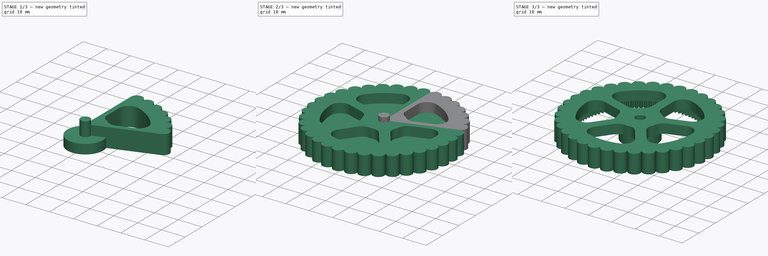
[diagram: build sequence overview — one tinted view per stage of 3, left to right]
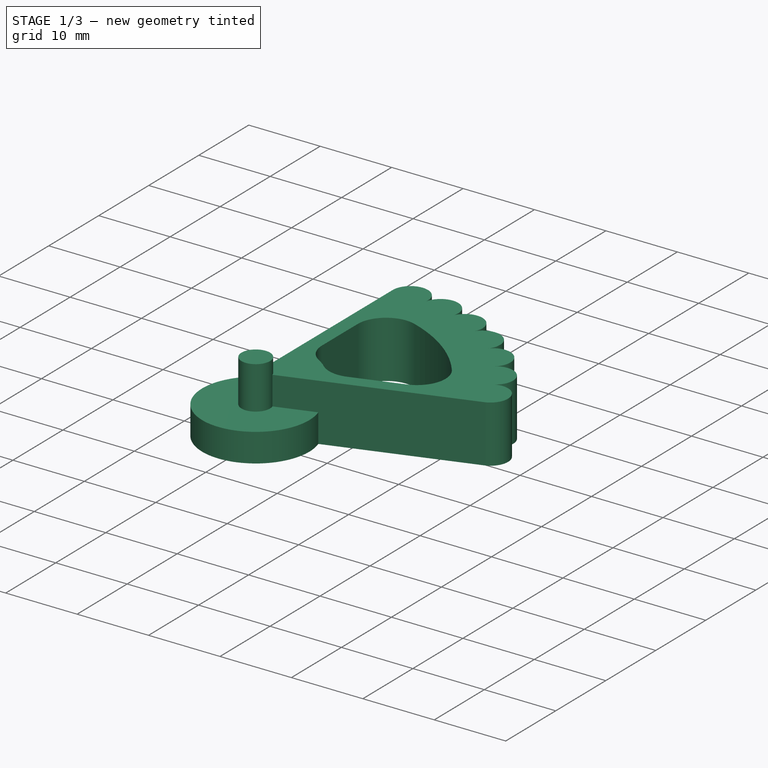
[diagram: stage 1 of 3 — iso view after this stage's code; geometry added in this stage tinted green]
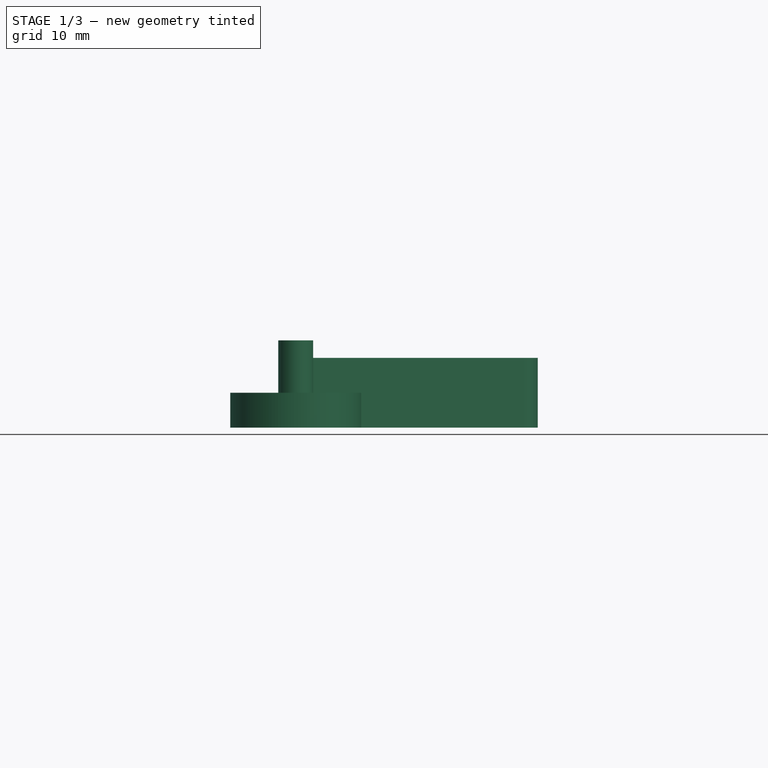
[diagram: stage 1 of 3 — front view after this stage's code; geometry added in this stage tinted green]
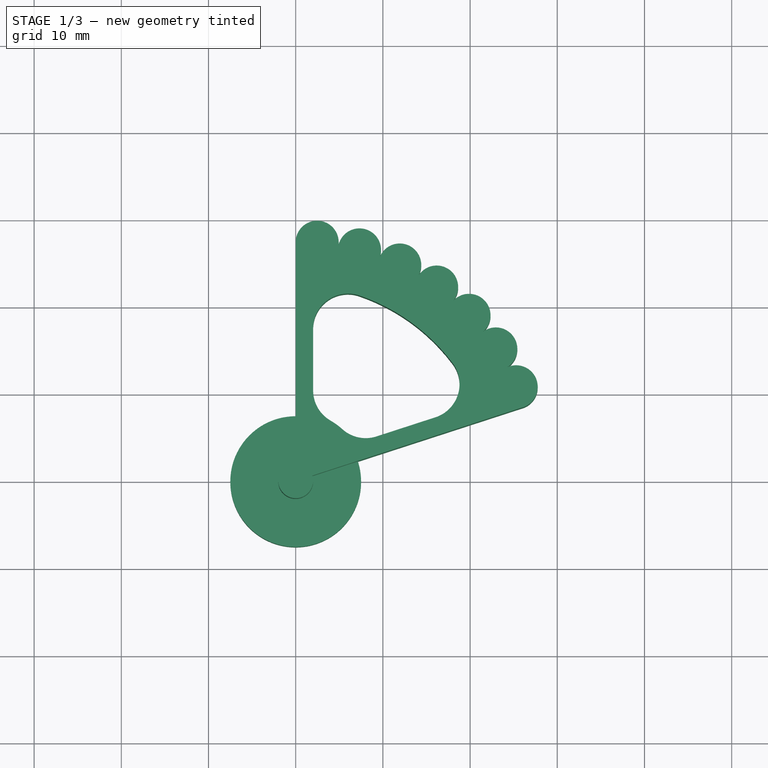
[diagram: stage 1 of 3 — top view after this stage's code; geometry added in this stage tinted green]
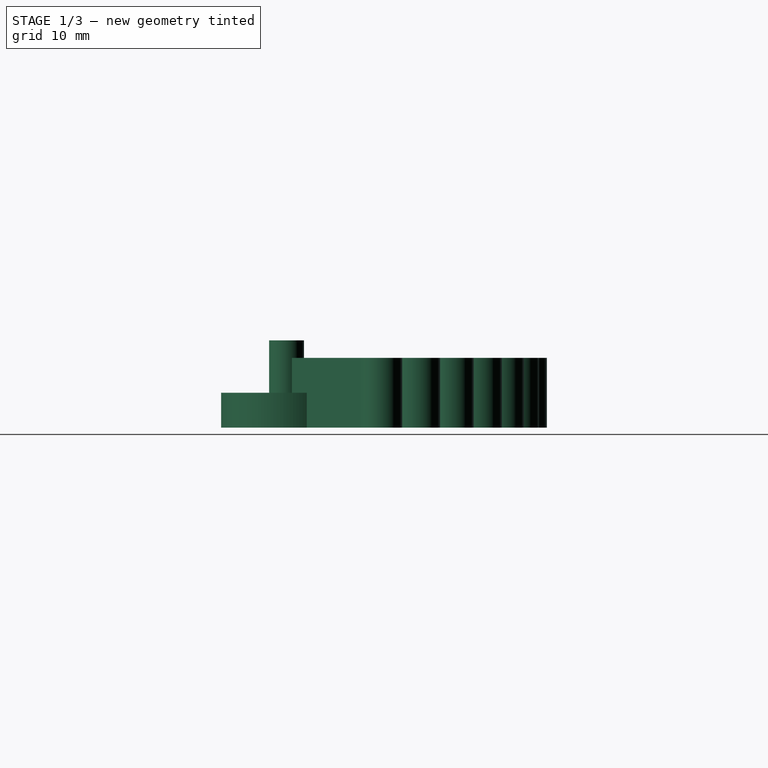
[diagram: stage 1 of 3 — right view after this stage's code; geometry added in this stage tinted green]
FCSTD DOCUMENT  (FreeCAD 0.20R27319 (Git))
Label: TRy
License: All rights reserved
LicenseURL: http://en.wikipedia.org/wiki/All_rights_reserved
objects: Part::Cut×2, Part::Cylinder×2, Sketcher::SketchObject×1, PartDesign::Pad×1, Spreadsheet::Sheet×1, PartDesign::PolarPattern×1, Part::Part2DObjectPython×1, PartDesign::Body×1, Part::Extrusion×1, Part::MultiFuse×1
note: 12 computed .brp shape members not serialized (recipe doc carries the construction recipe); baked Part::Feature solids carry a one-line shape summary decoded from their .brp

FEATURE [Sketcher::SketchObject] Sketch
  FullyConstrained = false
  MapMode = 5
  Support = -> [XY_Plane]
  expr: Constraints[11] = Spreadsheet.InnerDiameter / 2
  expr: Constraints[1] = Spreadsheet.OuterDiameter / 2
  expr: Constraints[7] = 360 / 5
  sketch-geometry (22):
    g0: Circle CenterX=0 CenterY=0 CenterZ=0 NormalX=0 NormalY=0 NormalZ=1 AngleXU=0 Radius=27.5
    g1: LineSegment StartX=0 StartY=0 StartZ=0 EndX=0 EndY=27.5 EndZ=0
    g2: LineSegment StartX=0 StartY=0 StartZ=0 EndX=26.1541 EndY=8.49797 EndZ=0
    g3: LineSegment StartX=2 StartY=10.3923 StartZ=0 EndX=2 EndY=17.5 EndZ=0
    g4: LineSegment StartX=9.26564 StartY=5.11351 StartZ=0 EndX=16.0255 EndY=7.30991 EndZ=0
    g5: Circle CenterX=0 CenterY=0 CenterZ=0 NormalX=0 NormalY=0 NormalZ=1 AngleXU=0 Radius=8
    g6: Circle CenterX=0 CenterY=0 CenterZ=0 NormalX=0 NormalY=0 NormalZ=1 AngleXU=0 Radius=22.5
    g7: ArcOfCircle CenterX=1.9e-15 CenterY=7.2e-15 CenterZ=0 NormalX=0 NormalY=0 NormalZ=1 AngleXU=0 Radius=22.5 StartAngle=0.644457 EndAngle=1.2405
    g8: LineSegment StartX=12.1384 StartY=6.04693 StartZ=0 EndX=12.7564 EndY=4.14482 EndZ=0
    g9: ArcOfCircle CenterX=2.46508 CenterY=27.3893 CenterZ=0 NormalX=0 NormalY=0 NormalZ=1 AngleXU=0 Radius=2.46757 StartAngle=6.14855 EndAngle=9.3799
    g10: ArcOfCircle CenterX=7.31601 CenterY=26.509 CenterZ=0 NormalX=0 NormalY=0 NormalZ=1 AngleXU=0 Radius=2.46757 StartAngle=5.96903 EndAngle=9.20038
    g11: ArcOfCircle CenterX=11.9318 CenterY=24.7766 CenterZ=0 NormalX=0 NormalY=0 NormalZ=1 AngleXU=0 Radius=2.46757 StartAngle=5.78951 EndAngle=9.02086
    g12: ArcOfCircle CenterX=16.1641 CenterY=22.248 CenterZ=0 NormalX=0 NormalY=0 NormalZ=1 AngleXU=0 Radius=2.46757 StartAngle=5.60999 EndAngle=8.84134
    g13: ArcOfCircle CenterX=19.8769 CenterY=19.0042 CenterZ=0 NormalX=0 NormalY=0 NormalZ=1 AngleXU=0 Radius=2.46757 StartAngle=5.43047 EndAngle=8.66182
    g14: ArcOfCircle CenterX=22.9508 CenterY=15.1497 CenterZ=0 NormalX=0 NormalY=0 NormalZ=1 AngleXU=0 Radius=2.46757 StartAngle=5.25095 EndAngle=8.4823
    g15: ArcOfCircle CenterX=25.287 CenterY=10.8082 CenterZ=0 NormalX=0 NormalY=0 NormalZ=1 AngleXU=0 Radius=2.46757 StartAngle=5.07143 EndAngle=8.30278
    g16: ArcOfCircle CenterX=6 CenterY=17.5 CenterZ=0 NormalX=0 NormalY=0 NormalZ=1 AngleXU=0 Radius=4 StartAngle=1.2405 EndAngle=3.14159
    g17: ArcOfCircle CenterX=14.7894 CenterY=11.1141 CenterZ=0 NormalX=0 NormalY=0 NormalZ=1 AngleXU=0 Radius=4 StartAngle=5.02655 EndAngle=6.92764
    g18: LineSegment StartX=0 StartY=15.7408 StartZ=0 EndX=2 EndY=15.7408 EndZ=0
    g19: ArcOfCircle CenterX=6 CenterY=10.3923 CenterZ=0 NormalX=0 NormalY=0 NormalZ=1 AngleXU=0 Radius=4 StartAngle=3.14159 EndAngle=4.18879
    g20: ArcOfCircle CenterX=8.02957 CenterY=8.91774 CenterZ=0 NormalX=0 NormalY=0 NormalZ=1 AngleXU=0 Radius=4 StartAngle=3.97935 EndAngle=5.02655
    g21: ArcOfCircle CenterX=-5.8e-15 CenterY=-6.2e-15 CenterZ=0 NormalX=0 NormalY=0 NormalZ=1 AngleXU=0 Radius=8 StartAngle=0.837758 EndAngle=1.0472
  constraints (65):
    c: Coincident(g0,g-1)
    c: Radius(g0) = 27.5
    c: Coincident(g1,g0)
    c: PointOnObject(g1,g0)
    c: Vertical(g1)
    c: Coincident(g2,g1)
    c: PointOnObject(g2,g0)
    c: Angle(g2,g1) = 1.25664
    c: Coincident(g5,g1)
    c: Coincident(g6,g1)
    c: Radius(g5) = 8
    c: Radius(g6) = 22.5
    c: Parallel(g4,g2)
    c: Parallel(g1,g3)
    c: PointOnObject(g8,g4)
    c: PointOnObject(g8,g2)
    c: Perpendicular(g2,g8)
    c: Distance(g8) = 2
    c: Coincident(g9,g1)
    c: PointOnObject(g9,g0)
    c: Coincident(g10,g9)
    c: PointOnObject(g10,g0)
    c: Coincident(g11,g10)
    c: PointOnObject(g11,g0)
    c: Equal(g9,g10)
    c: Equal(g10,g11)
    c: PointOnObject(g9,g0)
    c: PointOnObject(g10,g0)
    c: PointOnObject(g11,g0)
    c: PointOnObject(g12,g0)
    c: Coincident(g12,g11)
    c: PointOnObject(g12,g0)
    c: PointOnObject(g13,g0)
    c: Coincident(g13,g12)
    c: PointOnObject(g13,g0)
    c: PointOnObject(g14,g0)
    c: Coincident(g14,g13)
    c: PointOnObject(g14,g0)
    c: PointOnObject(g15,g0)
    c: Coincident(g15,g14)
    c: Equal(g15,g14)
    c: Equal(g14,g13)
    c: Equal(g13,g12)
    c: Equal(g12,g11)
    c: Coincident(g2,g15)
    c: Tangent(g7,g16) = -1.5708
    c: Tangent(g7,g6) = -1.5708
    c: Equal(g16,g17)
    c: Tangent(g7,g17) = -1.5708
    c: PointOnObject(g7,g6)
    c: Radius(g16) = 4
    c: PointOnObject(g18,g1)
    c: PointOnObject(g18,g3)
    c: Horizontal(g18)
    c: Equal(g18,g8)
    c: Tangent(g3,g16) = 1.5708
    c: Tangent(g4,g17) = -1.5708
    c: Equal(g19,g20)
    c: Tangent(g5,g19)
    c: Tangent(g3,g19) = 1.5708
    c: Tangent(g4,g20) = -1.5708
    c: Radius(g19) = 4
    c: Coincident(g21,g19)
    c: Tangent(g21,g5) = -1.5708
    c: Tangent(g20,g21) = 1.5708
FEATURE [PartDesign::Pad] Pad
  Direction = (0,0,1)
  Length = 8
  Length2 = 8
  Profile = -> Sketch
  ReferenceAxis = -> Sketch [N_Axis]
  Type = 0
FEATURE [Part::Cylinder] Cylinder001
  Angle = 360
  AttacherType = Attacher::AttachEngine3D
  FirstAngle = 0
  Height = 4
  Radius = 7.5
  SecondAngle = 0
FEATURE [Part::Cylinder] Cylinder
  Angle = 360
  AttacherType = Attacher::AttachEngine3D
  FirstAngle = 0
  Height = 10
  Radius = 2
  SecondAngle = 0
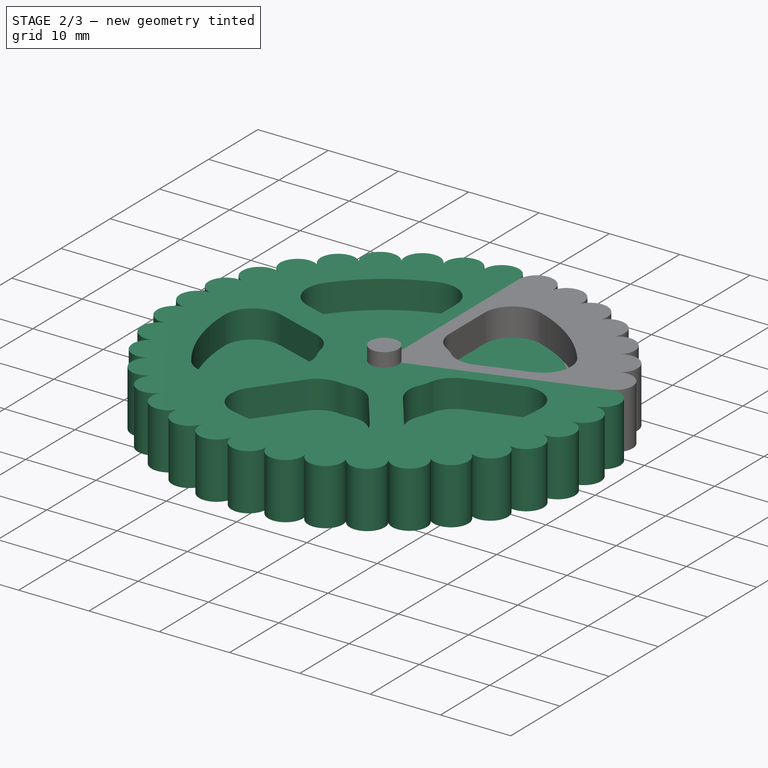
[diagram: stage 2 of 3 — iso view after this stage's code; geometry added in this stage tinted green]
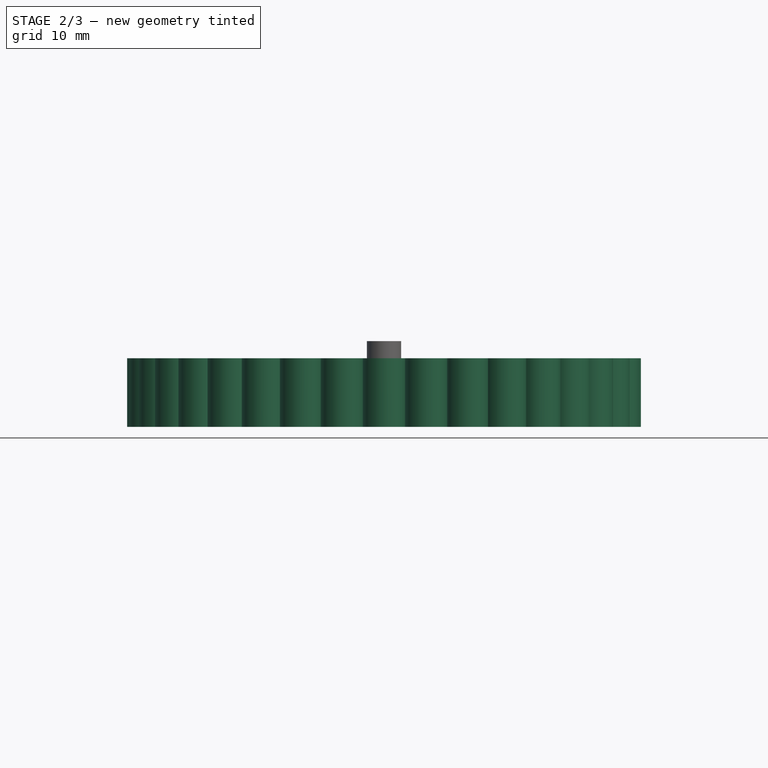
[diagram: stage 2 of 3 — front view after this stage's code; geometry added in this stage tinted green]
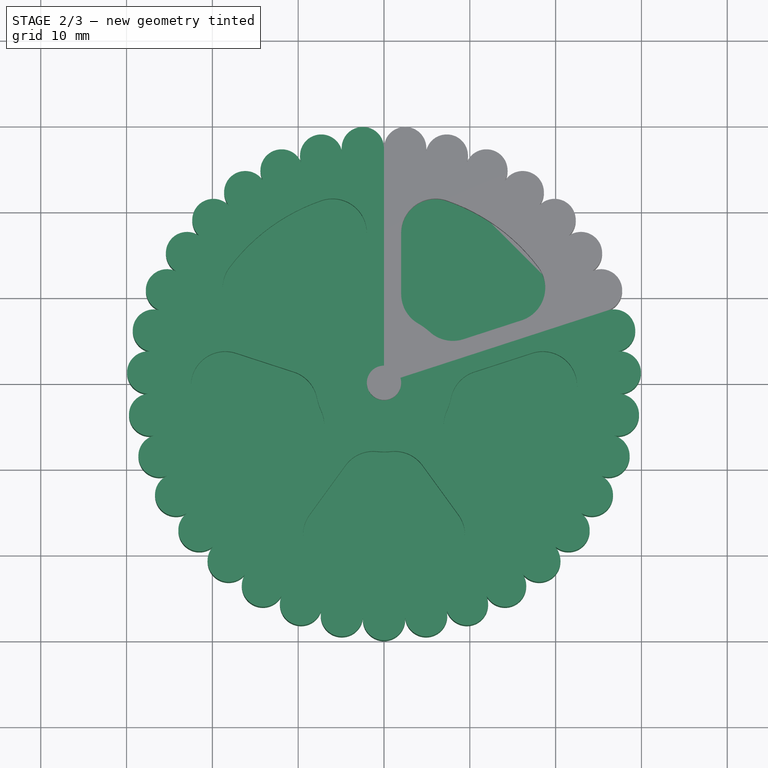
[diagram: stage 2 of 3 — top view after this stage's code; geometry added in this stage tinted green]
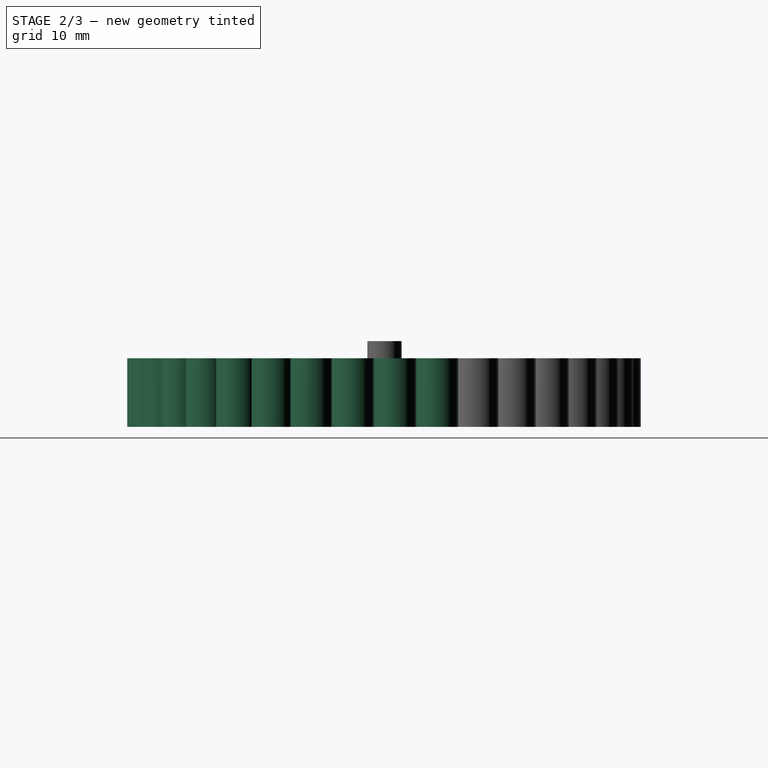
[diagram: stage 2 of 3 — right view after this stage's code; geometry added in this stage tinted green]
FEATURE [Spreadsheet::Sheet] Spreadsheet
  cells = A1=Outer Diameter; B1(OuterDiameter)=55; A2=Inner Diameter; B2(InnerDiameter)=45; A3=Detent angle; B3==360 / 5 / 10
FEATURE [PartDesign::PolarPattern] PolarPattern
  Angle = 360
  Axis = -> Sketch [N_Axis]
  BaseFeature = -> Pad
  Occurrences = 5
  Originals = -> [Pad]
  Overlap = 0
FEATURE [Part::Part2DObjectPython] InvoluteGear  # Draft 2D object (typed FeaturePython)
  ExternalGear = true
  HighPrecision = false
  Modules = 0.5
  NumberOfTeeth = 100
  PressureAngle = 20
FEATURE [PartDesign::Body] Body
  Group = -> [Sketch,Pad,InvoluteGear,PolarPattern]
  Origin = -> Origin
  Tip = -> PolarPattern
FEATURE [Part::Extrusion] Extrude
  Base = -> InvoluteGear
  Dir = (0,0,1)
  DirMode = 2
  FaceMakerClass = Part::FaceMakerBullseye
  LengthFwd = 4
  LengthRev = 0
  Solid = true
  Symmetric = false
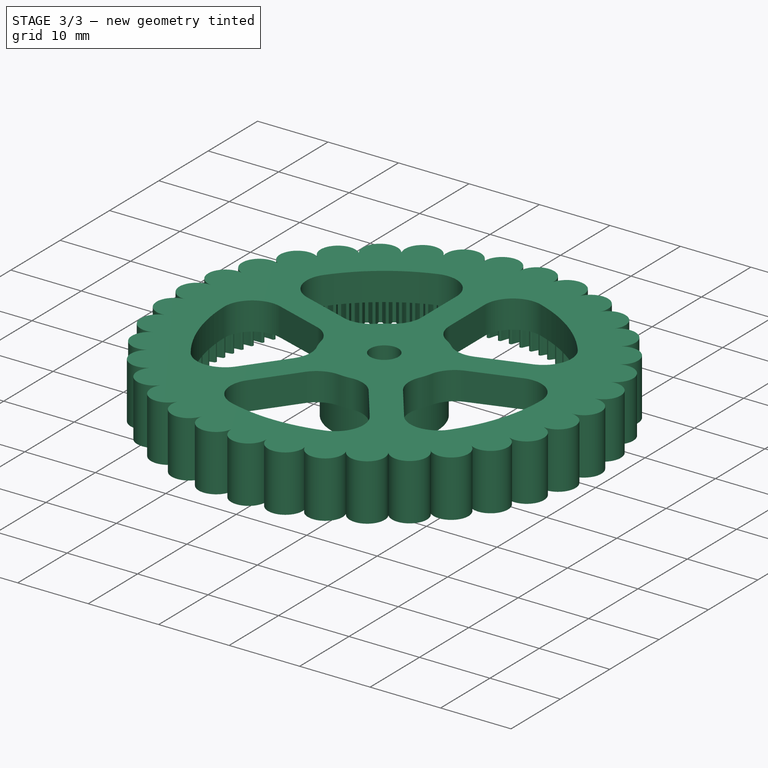
[diagram: stage 3 of 3 — iso view after this stage's code; geometry added in this stage tinted green]
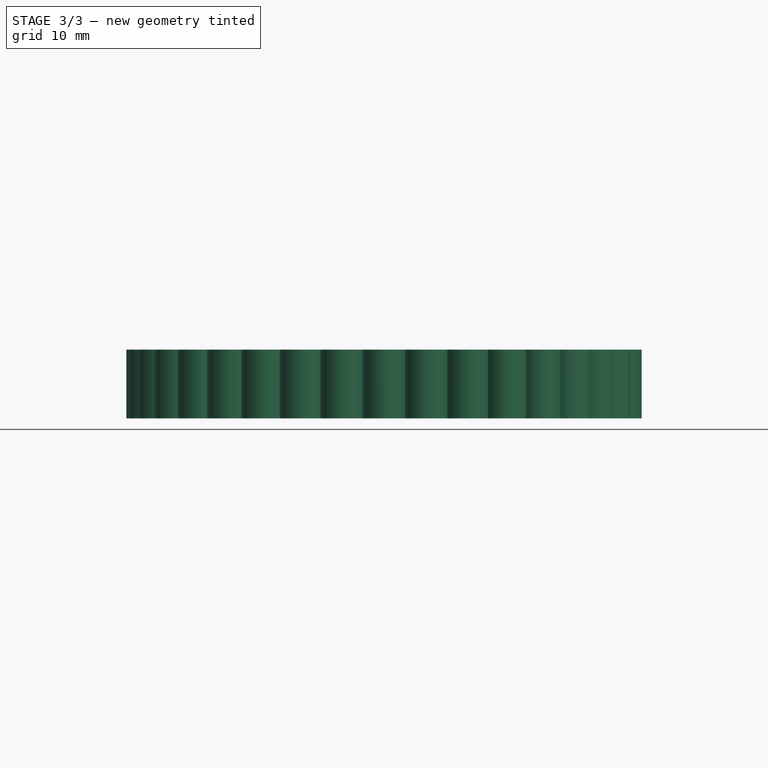
[diagram: stage 3 of 3 — front view after this stage's code; geometry added in this stage tinted green]
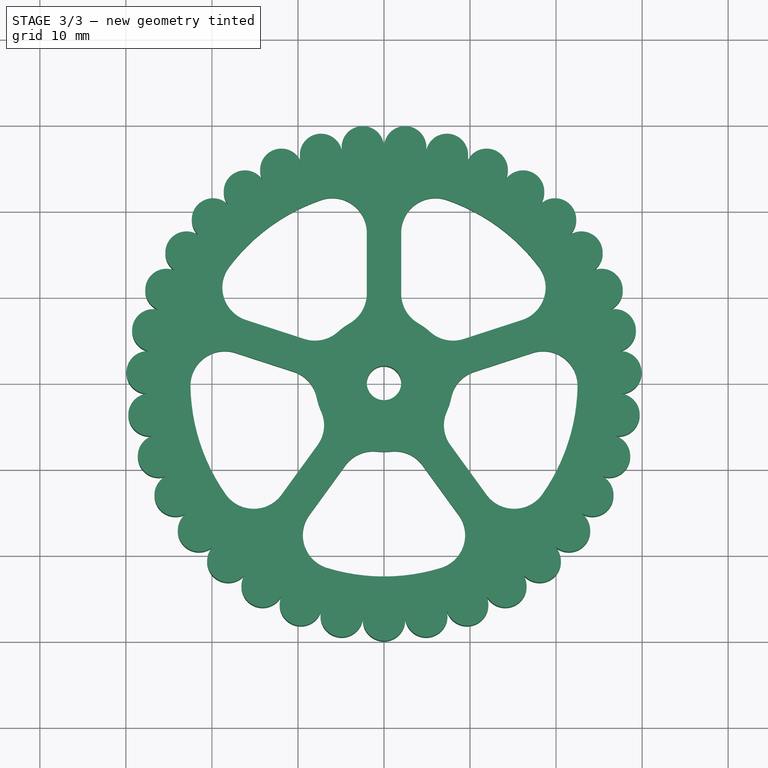
[diagram: stage 3 of 3 — top view after this stage's code; geometry added in this stage tinted green]
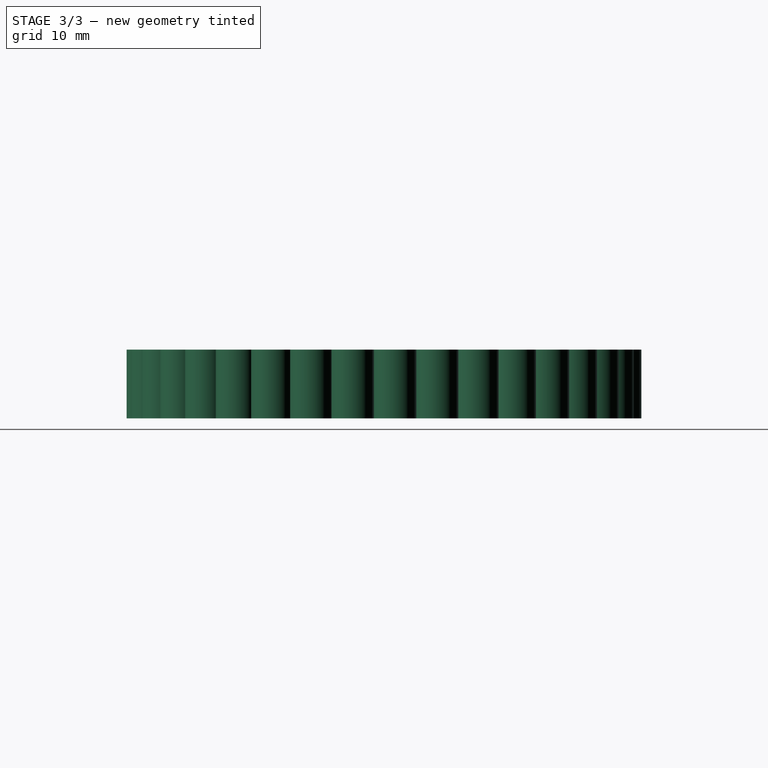
[diagram: stage 3 of 3 — right view after this stage's code; geometry added in this stage tinted green]
FEATURE [Part::Cut] Cut
  Base = -> Body
  Tool = -> Extrude
FEATURE [Part::MultiFuse] Fusion
  Shapes = -> [Cut,Cylinder001,Cylinder]
FEATURE [Part::Cut] Cut001
  Base = -> Fusion
  Tool = -> Cylinder
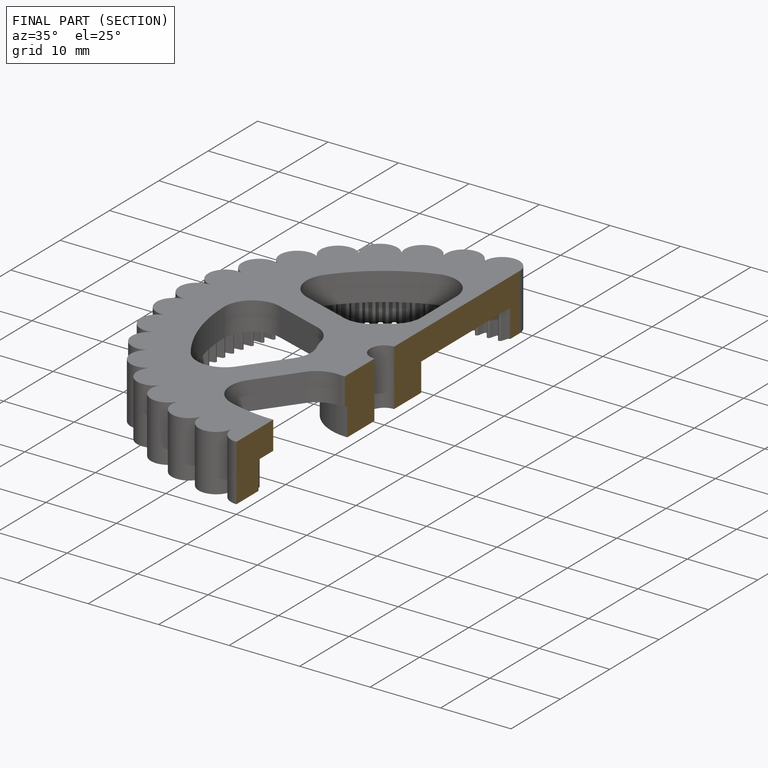
[diagram: finished part — half-section view (interior)]
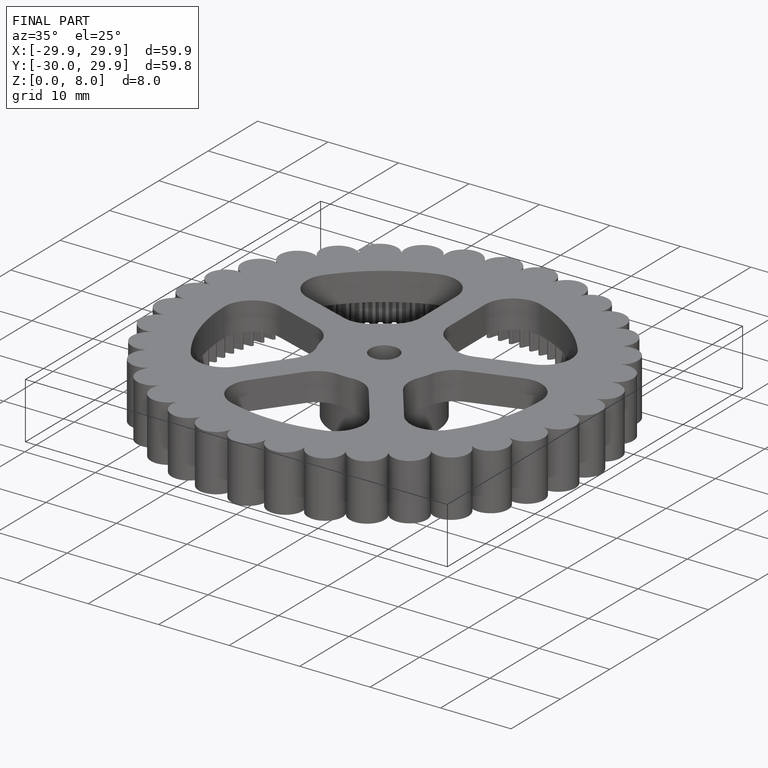
[diagram: finished part — iso view with bounding-box wireframe]
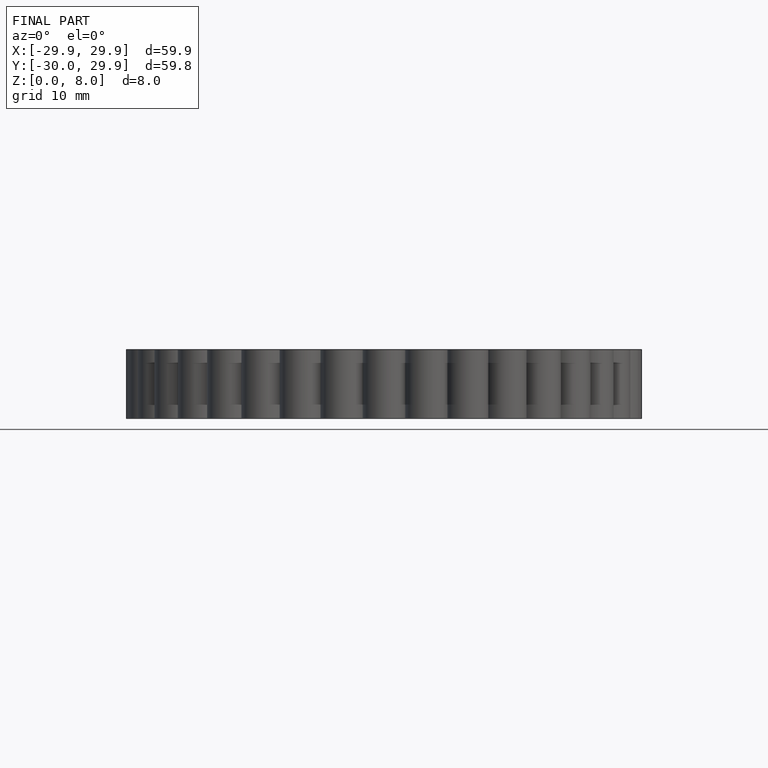
[diagram: finished part — front view with bounding-box wireframe]
